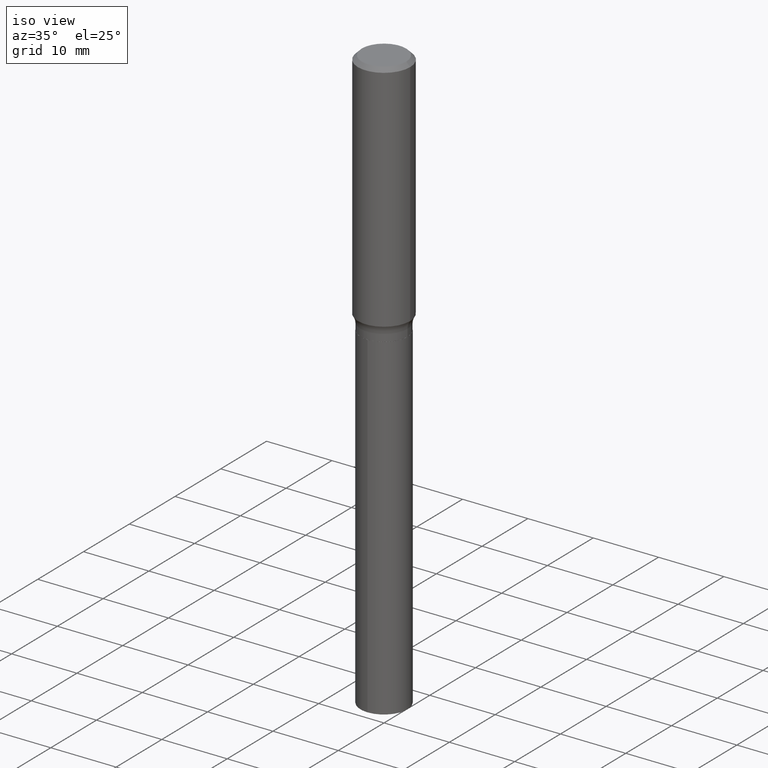
[diagram: clean part render]
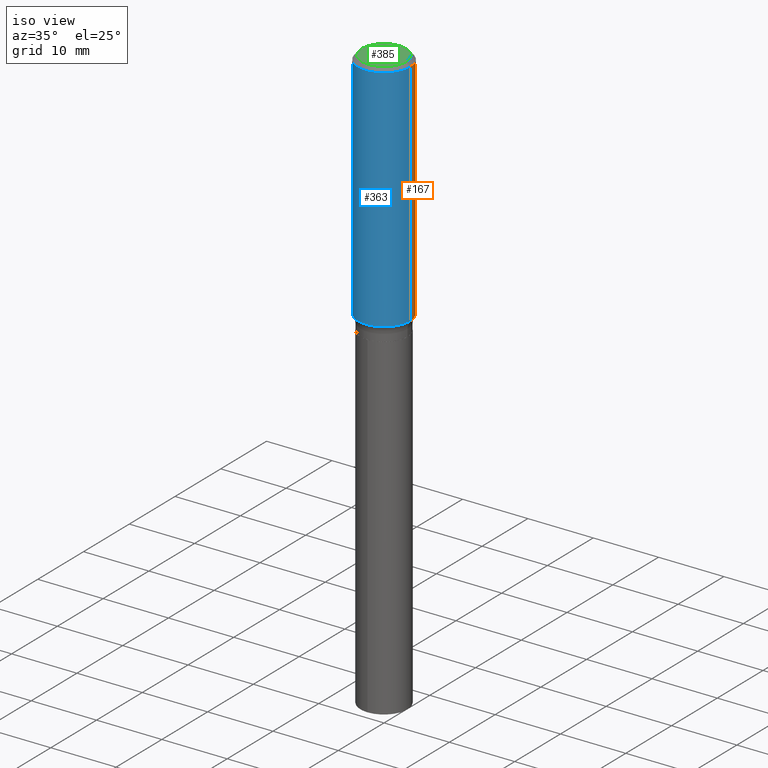
[diagram: same view with three faces highlighted in distinct colors, each labeled with its STEP entity id]
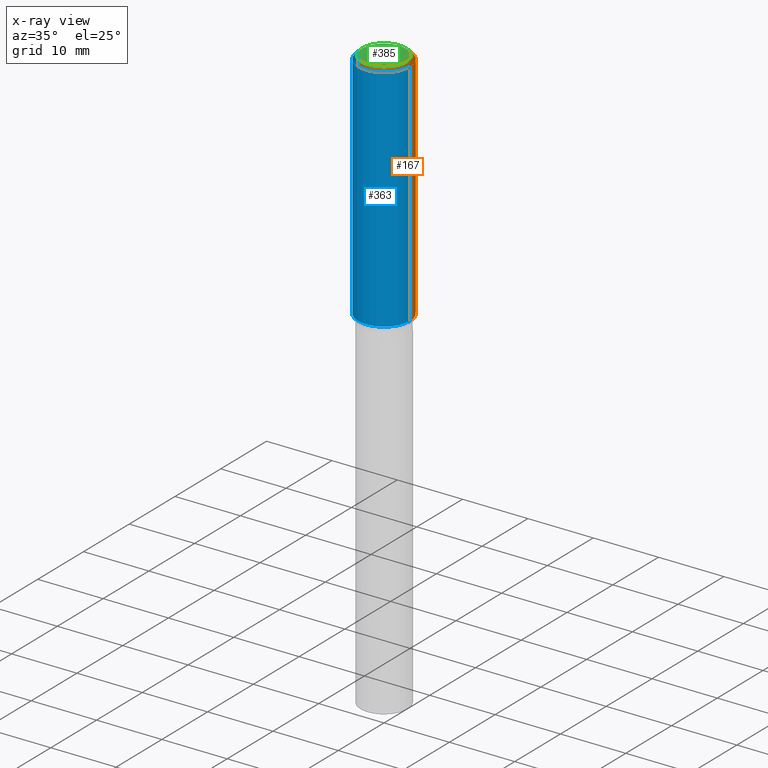
[diagram: x-ray of the same camera — body ghosted, the three highlighted faces saturated]
A machine part, iso view with three faces highlighted in distinct colors.
The next image is the same camera in x-ray (body ghosted, the three faces saturated) — at least one of them is partly hidden behind the body in this view.
Their STEP definitions:

[orange] entity #167 — the highlighted cylindrical surface (edge-blend (fillet) strip) has radius 4.0005 mm, axis along (-0, 0, 1).
#13 = EDGE_CURVE ( 'NONE', #273, #422, #384, .T. ) ;
#15 = ORIENTED_EDGE ( 'NONE', *, *, #13, .T. ) ;
#16 = CYLINDRICAL_SURFACE ( 'NONE', #279, 0.1575000000000000844 ) ;
#30 = CARTESIAN_POINT ( 'NONE',  ( 0.1575000000000001954, -6.010587446298547269E-15, -1.406500664898319819 ) ) ;
#38 = DIRECTION ( 'NONE',  ( 1.000000000000000000, -6.982962677686265922E-15, 0.000000000000000000 ) ) ;
#59 = DIRECTION ( 'NONE',  ( 1.000000000000000000, -6.982962677686267499E-15, 4.876176775795936353E-29 ) ) ;
#61 = CIRCLE ( 'NONE', #489, 0.1575000000000000011 ) ;
#68 = VERTEX_POINT ( 'NONE', #448 ) ;
#73 = DIRECTION ( 'NONE',  ( -2.445468806185136597E-29, 3.491481338843145583E-15, 1.000000000000000000 ) ) ;
#75 = DIRECTION ( 'NONE',  ( 1.000000000000000000, -6.982962677686265922E-15, 0.000000000000000000 ) ) ;
#92 = DIRECTION ( 'NONE',  ( -2.445468806185136877E-29, 3.491481338843145188E-15, 1.000000000000000000 ) ) ;
#100 = VECTOR ( 'NONE', #168, 39.37007874015748143 ) ;
#105 = DIRECTION ( 'NONE',  ( -2.445468806185136597E-29, 3.491481338843145583E-15, 1.000000000000000000 ) ) ;
#107 = EDGE_CURVE ( 'NONE', #422, #68, #328, .T. ) ;
#130 = LINE ( 'NONE', #314, #100 ) ;
#145 = ORIENTED_EDGE ( 'NONE', *, *, #199, .F. ) ;
#164 = DIRECTION ( 'NONE',  ( -2.445468806185136597E-29, 3.491481338843145583E-15, 1.000000000000000000 ) ) ;
#167 = ADVANCED_FACE ( 'NONE', ( #399 ), #16, .T. ) ;
#168 = DIRECTION ( 'NONE',  ( -2.445468806185136877E-29, 3.491481338843145188E-15, 1.000000000000000000 ) ) ;
#182 = CARTESIAN_POINT ( 'NONE',  ( 3.439553501887494675E-29, -4.910770824562959789E-15, -1.406500664898319819 ) ) ;
#186 = CARTESIAN_POINT ( 'NONE',  ( 5.777420054612421104E-31, -8.248624663016984002E-17, -0.02362500000000014588 ) ) ;
#199 = EDGE_CURVE ( 'NONE', #273, #398, #130, .T. ) ;
#251 = EDGE_LOOP ( 'NONE', ( #15, #471, #447, #145 ) ) ;
#273 = VERTEX_POINT ( 'NONE', #30 ) ;
#279 = AXIS2_PLACEMENT_3D ( 'NONE', #354, #164, #59 ) ;
#312 = CARTESIAN_POINT ( 'NONE',  ( -0.1575000000000000844, 1.119104808822158392E-15, -7.747322767151481189E-30 ) ) ;
#314 = CARTESIAN_POINT ( 'NONE',  ( 0.1575000000000000844, -1.099816621735587677E-15, 7.679978421878603638E-30 ) ) ;
#328 = LINE ( 'NONE', #312, #404 ) ;
#354 = CARTESIAN_POINT ( 'NONE',  ( 0.000000000000000000, 0.000000000000000000, 0.000000000000000000 ) ) ;
#374 = AXIS2_PLACEMENT_3D ( 'NONE', #182, #105, #75 ) ;
#384 = CIRCLE ( 'NONE', #374, 0.1575000000000001954 ) ;
#393 = CARTESIAN_POINT ( 'NONE',  ( -0.1575000000000001954, -3.791666015740800607E-15, -1.406500664898319819 ) ) ;
#398 = VERTEX_POINT ( 'NONE', #430 ) ;
#399 = FACE_OUTER_BOUND ( 'NONE', #251, .T. ) ;
#404 = VECTOR ( 'NONE', #92, 39.37007874015748143 ) ;
#408 = EDGE_CURVE ( 'NONE', #398, #68, #61, .T. ) ;
#422 = VERTEX_POINT ( 'NONE', #393 ) ;
#430 = CARTESIAN_POINT ( 'NONE',  ( 0.1575000000000000011, -1.182302868365756679E-15, -0.02362500000000014588 ) ) ;
#447 = ORIENTED_EDGE ( 'NONE', *, *, #408, .F. ) ;
#448 = CARTESIAN_POINT ( 'NONE',  ( -0.1575000000000000011, -1.377523726774406200E-15, -0.02362500000000014588 ) ) ;
#471 = ORIENTED_EDGE ( 'NONE', *, *, #107, .T. ) ;
#489 = AXIS2_PLACEMENT_3D ( 'NONE', #186, #73, #38 ) ;

[blue] entity #363 — the highlighted cylindrical surface (edge-blend (fillet) strip) has radius 4.0005 mm, axis along (-0, 0, 1).
#9 = CARTESIAN_POINT ( 'NONE',  ( 3.439553501887494675E-29, -4.910770824562959789E-15, -1.406500664898319819 ) ) ;
#18 = AXIS2_PLACEMENT_3D ( 'NONE', #32, #334, #347 ) ;
#21 = AXIS2_PLACEMENT_3D ( 'NONE', #47, #102, #305 ) ;
#30 = CARTESIAN_POINT ( 'NONE',  ( 0.1575000000000001954, -6.010587446298547269E-15, -1.406500664898319819 ) ) ;
#32 = CARTESIAN_POINT ( 'NONE',  ( 0.000000000000000000, 0.000000000000000000, 0.000000000000000000 ) ) ;
#47 = CARTESIAN_POINT ( 'NONE',  ( 5.777420054612421104E-31, -8.248624663016984002E-17, -0.02362500000000014588 ) ) ;
#54 = CIRCLE ( 'NONE', #366, 0.1575000000000001954 ) ;
#68 = VERTEX_POINT ( 'NONE', #448 ) ;
#88 = FACE_OUTER_BOUND ( 'NONE', #340, .T. ) ;
#92 = DIRECTION ( 'NONE',  ( -2.445468806185136877E-29, 3.491481338843145188E-15, 1.000000000000000000 ) ) ;
#100 = VECTOR ( 'NONE', #168, 39.37007874015748143 ) ;
#102 = DIRECTION ( 'NONE',  ( -2.445468806185136597E-29, 3.491481338843145583E-15, 1.000000000000000000 ) ) ;
#107 = EDGE_CURVE ( 'NONE', #422, #68, #328, .T. ) ;
#130 = LINE ( 'NONE', #314, #100 ) ;
#168 = DIRECTION ( 'NONE',  ( -2.445468806185136877E-29, 3.491481338843145188E-15, 1.000000000000000000 ) ) ;
#199 = EDGE_CURVE ( 'NONE', #273, #398, #130, .T. ) ;
#252 = DIRECTION ( 'NONE',  ( -2.445468806185136597E-29, 3.491481338843145583E-15, 1.000000000000000000 ) ) ;
#273 = VERTEX_POINT ( 'NONE', #30 ) ;
#287 = ORIENTED_EDGE ( 'NONE', *, *, #199, .T. ) ;
#295 = CYLINDRICAL_SURFACE ( 'NONE', #18, 0.1575000000000000844 ) ;
#305 = DIRECTION ( 'NONE',  ( 1.000000000000000000, -6.982962677686265922E-15, 0.000000000000000000 ) ) ;
#312 = CARTESIAN_POINT ( 'NONE',  ( -0.1575000000000000844, 1.119104808822158392E-15, -7.747322767151481189E-30 ) ) ;
#314 = CARTESIAN_POINT ( 'NONE',  ( 0.1575000000000000844, -1.099816621735587677E-15, 7.679978421878603638E-30 ) ) ;
#328 = LINE ( 'NONE', #312, #404 ) ;
#333 = ORIENTED_EDGE ( 'NONE', *, *, #107, .F. ) ;
#334 = DIRECTION ( 'NONE',  ( -2.445468806185136597E-29, 3.491481338843145583E-15, 1.000000000000000000 ) ) ;
#340 = EDGE_LOOP ( 'NONE', ( #333, #395, #287, #411 ) ) ;
#342 = EDGE_CURVE ( 'NONE', #68, #398, #431, .T. ) ;
#347 = DIRECTION ( 'NONE',  ( 1.000000000000000000, -6.982962677686267499E-15, 4.876176775795936353E-29 ) ) ;
#356 = EDGE_CURVE ( 'NONE', #422, #273, #54, .T. ) ;
#363 = ADVANCED_FACE ( 'NONE', ( #88 ), #295, .T. ) ;
#366 = AXIS2_PLACEMENT_3D ( 'NONE', #9, #252, #425 ) ;
#393 = CARTESIAN_POINT ( 'NONE',  ( -0.1575000000000001954, -3.791666015740800607E-15, -1.406500664898319819 ) ) ;
#395 = ORIENTED_EDGE ( 'NONE', *, *, #356, .T. ) ;
#398 = VERTEX_POINT ( 'NONE', #430 ) ;
#404 = VECTOR ( 'NONE', #92, 39.37007874015748143 ) ;
#411 = ORIENTED_EDGE ( 'NONE', *, *, #342, .F. ) ;
#422 = VERTEX_POINT ( 'NONE', #393 ) ;
#425 = DIRECTION ( 'NONE',  ( 1.000000000000000000, -6.982962677686265922E-15, 0.000000000000000000 ) ) ;
#430 = CARTESIAN_POINT ( 'NONE',  ( 0.1575000000000000011, -1.182302868365756679E-15, -0.02362500000000014588 ) ) ;
#431 = CIRCLE ( 'NONE', #21, 0.1575000000000000011 ) ;
#448 = CARTESIAN_POINT ( 'NONE',  ( -0.1575000000000000011, -1.377523726774406200E-15, -0.02362500000000014588 ) ) ;

[green] entity #385 — the highlighted planar face has unit normal (0, -0, -1).
#6 = PLANE ( 'NONE',  #205 ) ;
#45 = ORIENTED_EDGE ( 'NONE', *, *, #436, .T. ) ;
#96 = CIRCLE ( 'NONE', #386, 0.1338749999999999940 ) ;
#133 = DIRECTION ( 'NONE',  ( -2.445468806185136597E-29, 3.491481338843145583E-15, 1.000000000000000000 ) ) ;
#171 = VERTEX_POINT ( 'NONE', #307 ) ;
#176 = FACE_OUTER_BOUND ( 'NONE', #231, .T. ) ;
#180 = DIRECTION ( 'NONE',  ( -1.000000000000000000, 6.982962677686265922E-15, -4.876176775795935793E-29 ) ) ;
#192 = DIRECTION ( 'NONE',  ( -2.445468806185136597E-29, 3.491481338843145583E-15, 1.000000000000000000 ) ) ;
#205 = AXIS2_PLACEMENT_3D ( 'NONE', #469, #379, #180 ) ;
#214 = CARTESIAN_POINT ( 'NONE',  ( -1.002970424325032604E-46, 1.431975951230895391E-32, 4.101342130344482109E-18 ) ) ;
#231 = EDGE_LOOP ( 'NONE', ( #330, #45 ) ) ;
#235 = EDGE_CURVE ( 'NONE', #415, #171, #426, .T. ) ;
#262 = DIRECTION ( 'NONE',  ( 1.000000000000000000, -6.982962677686266711E-15, 4.876170806578254279E-29 ) ) ;
#307 = CARTESIAN_POINT ( 'NONE',  ( 0.1338749999999999940, -1.040731925365424925E-15, 4.101342130351390035E-18 ) ) ;
#330 = ORIENTED_EDGE ( 'NONE', *, *, #235, .T. ) ;
#379 = DIRECTION ( 'NONE',  ( 2.438088387897960049E-29, -3.491481338843145188E-15, -1.000000000000000000 ) ) ;
#385 = ADVANCED_FACE ( 'NONE', ( #176 ), #6, .F. ) ;
#386 = AXIS2_PLACEMENT_3D ( 'NONE', #214, #192, #262 ) ;
#415 = VERTEX_POINT ( 'NONE', #457 ) ;
#426 = CIRCLE ( 'NONE', #479, 0.1338749999999999940 ) ;
#436 = EDGE_CURVE ( 'NONE', #171, #415, #96, .T. ) ;
#439 = DIRECTION ( 'NONE',  ( 1.000000000000000000, -6.982962677686266711E-15, 4.876170806578254279E-29 ) ) ;
#457 = CARTESIAN_POINT ( 'NONE',  ( -0.1338749999999999940, 9.760872517903331886E-16, 4.101342130337800673E-18 ) ) ;
#469 = CARTESIAN_POINT ( 'NONE',  ( -5.014852121625163022E-47, 7.159879756154476955E-33, 2.050671065172241055E-18 ) ) ;
#479 = AXIS2_PLACEMENT_3D ( 'NONE', #481, #133, #439 ) ;
#481 = CARTESIAN_POINT ( 'NONE',  ( -1.002970424325032604E-46, 1.431975951230895391E-32, 4.101342130344482109E-18 ) ) ;